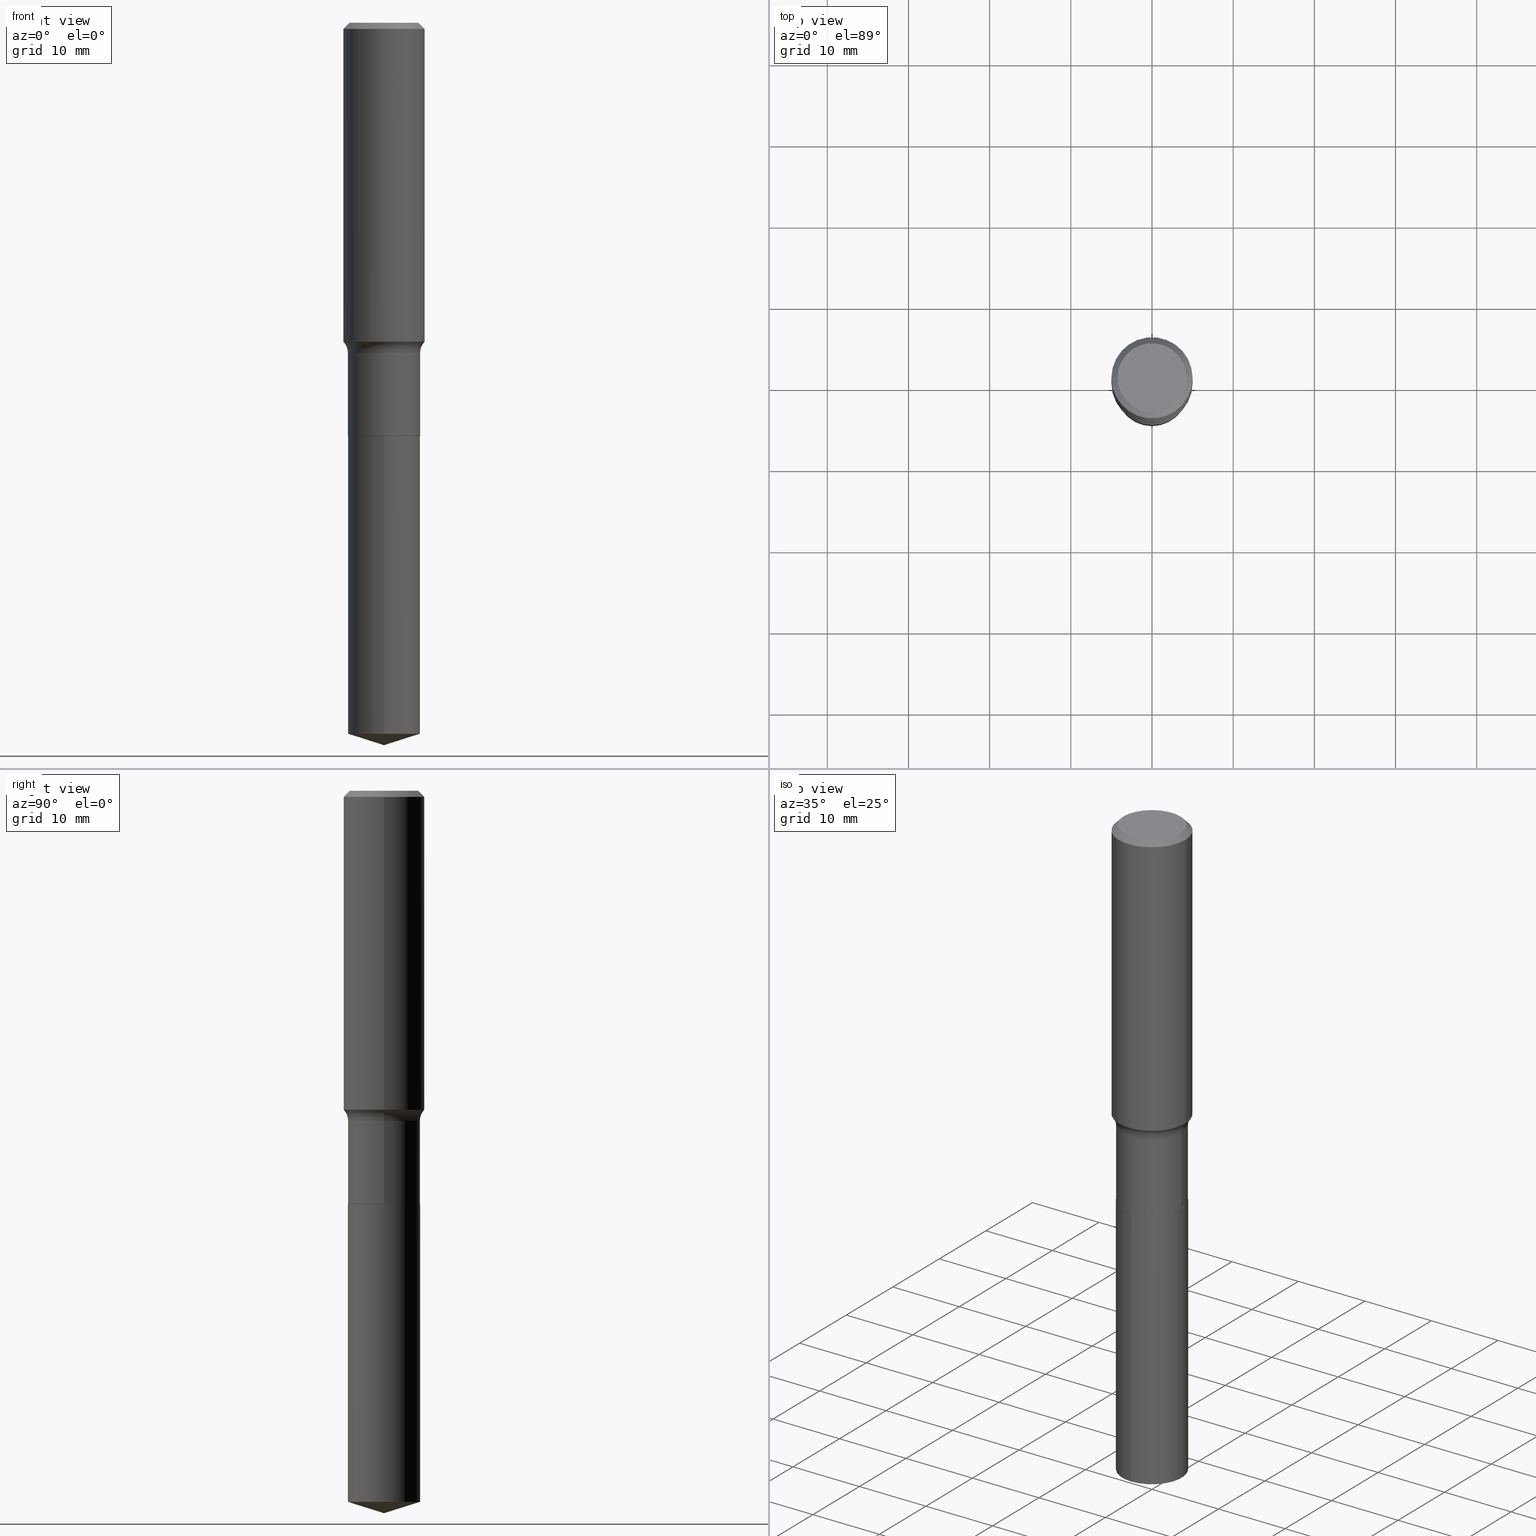
[diagram: canonical four-view strip — front | top / right | iso, engineering-drawing reading convention]
A machine part, canonical four-view strip (front | top / right | iso — engineering-drawing reading convention). The complete STEP part file that produces these views, byte-faithful:
ISO-10303-21;
HEADER;
FILE_DESCRIPTION (( 'STEP AP203' ),
    '1' );
FILE_NAME ('63772.STEP',
    '2024-04-19T15:09:20',
    ( '' ),
    ( '' ),
    'SwSTEP 2.0',
    'SolidWorks 2023',
    '' );
FILE_SCHEMA (( 'CONFIG_CONTROL_DESIGN' ));
ENDSEC;

DATA;
#1 = LINE ( 'NONE', #259, #117 ) ;
#2 =( GEOMETRIC_REPRESENTATION_CONTEXT ( 3 ) GLOBAL_UNCERTAINTY_ASSIGNED_CONTEXT ( ( #177 ) ) GLOBAL_UNIT_ASSIGNED_CONTEXT ( ( #146, #295, #415 ) ) REPRESENTATION_CONTEXT ( 'NONE', 'WORKASPACE' ) );
#3 = ADVANCED_FACE ( 'NONE', ( #428 ), #235, .T. ) ;
#4 = ADVANCED_FACE ( 'NONE', ( #268 ), #182, .T. ) ;
#5 = ORIENTED_EDGE ( 'NONE', *, *, #328, .F. ) ;
#6 = CARTESIAN_POINT ( 'NONE',  ( 8.433480303777848006E-29, -1.204108734173697850E-14, -3.448659652188401648 ) ) ;
#7 = EDGE_LOOP ( 'NONE', ( #83, #121 ) ) ;
#8 = EDGE_CURVE ( 'NONE', #321, #196, #37, .T. ) ;
#9 = AXIS2_PLACEMENT_3D ( 'NONE', #282, #87, #364 ) ;
#10 = ORIENTED_EDGE ( 'NONE', *, *, #192, .T. ) ;
#11 = DIRECTION ( 'NONE',  ( 1.000000000000000000, -6.982962677686265922E-15, 0.000000000000000000 ) ) ;
#12 = EDGE_LOOP ( 'NONE', ( #461, #115, #324, #119 ) ) ;
#13 = CARTESIAN_POINT ( 'NONE',  ( 7.220858017463216492E-31, -1.030947152326917595E-16, -0.02952750000000022024 ) ) ;
#14 = CARTESIAN_POINT ( 'NONE',  ( -1.223415061130584771E-15, -0.1752000000000069890, -2.003899999999998904 ) ) ;
#15 = ORIENTED_EDGE ( 'NONE', *, *, #357, .F. ) ;
#16 = EDGE_LOOP ( 'NONE', ( #48, #264 ) ) ;
#17 = LINE ( 'NONE', #402, #432 ) ;
#18 = DIRECTION ( 'NONE',  ( 6.982962677686265922E-15, 1.000000000000000000, -3.491589676655351307E-15 ) ) ;
#19 = EDGE_CURVE ( 'NONE', #114, #464, #381, .T. ) ;
#20 = ORIENTED_EDGE ( 'NONE', *, *, #176, .T. ) ;
#21 = DIRECTION ( 'NONE',  ( -2.445468806185136597E-29, 3.491481338843145583E-15, 1.000000000000000000 ) ) ;
#22 = CYLINDRICAL_SURFACE ( 'NONE', #481, 0.1751999999999999391 ) ;
#23 = DATE_AND_TIME ( #341, #190 ) ;
#24 = CARTESIAN_POINT ( 'NONE',  ( 7.088636537325996106E-29, -3.863007506136273756E-15, -2.003899999999999348 ) ) ;
#25 = PERSON_AND_ORGANIZATION ( #110, #46 ) ;
#26 = LINE ( 'NONE', #409, #34 ) ;
#27 = TOROIDAL_SURFACE ( 'NONE', #304, 0.2531999999999999251, 0.07799999999999995826 ) ;
#28 = CIRCLE ( 'NONE', #66, 0.1751999999999999391 ) ;
#29 = COORDINATED_UNIVERSAL_TIME_OFFSET ( 5, 0, .BEHIND. ) ;
#30 = DIRECTION ( 'NONE',  ( -2.445468806185136597E-29, 3.491481338843145583E-15, 1.000000000000000000 ) ) ;
#31 = FACE_OUTER_BOUND ( 'NONE', #434, .T. ) ;
#32 = APPROVAL_DATE_TIME ( #255, #329 ) ;
#33 = DIRECTION ( 'NONE',  ( -2.445468806185136597E-29, 3.491481338843145583E-15, 1.000000000000000000 ) ) ;
#34 = VECTOR ( 'NONE', #284, 39.37007874015748854 ) ;
#35 = CARTESIAN_POINT ( 'NONE',  ( 3.914951011821784364E-29, -5.589512475353991008E-15, -1.600899999999999768 ) ) ;
#36 = DIRECTION ( 'NONE',  ( 1.000000000000000000, -6.982962677686267499E-15, 4.876294436782262290E-29 ) ) ;
#37 = LINE ( 'NONE', #385, #266 ) ;
#38 = ADVANCED_FACE ( 'NONE', ( #194 ), #388, .T. ) ;
#39 = AXIS2_PLACEMENT_3D ( 'NONE', #349, #43, #265 ) ;
#40 = DIRECTION ( 'NONE',  ( -2.445393154295215171E-29, 3.491589676655351307E-15, 1.000000000000000000 ) ) ;
#41 = ORIENTED_EDGE ( 'NONE', *, *, #489, .F. ) ;
#42 = ORIENTED_EDGE ( 'NONE', *, *, #426, .T. ) ;
#43 = DIRECTION ( 'NONE',  ( 2.445468806185136597E-29, -3.491481338843145583E-15, -1.000000000000000000 ) ) ;
#44 = EDGE_LOOP ( 'NONE', ( #201, #42, #236, #427 ) ) ;
#45 = VECTOR ( 'NONE', #439, 39.37007874015748854 ) ;
#46 = ORGANIZATION ( 'UNSPECIFIED', 'UNSPECIFIED', '' ) ;
#47 = FACE_OUTER_BOUND ( 'NONE', #90, .T. ) ;
#48 = ORIENTED_EDGE ( 'NONE', *, *, #187, .T. ) ;
#49 = DIRECTION ( 'NONE',  ( 1.000000000000000000, -6.982962677686265922E-15, 0.000000000000000000 ) ) ;
#50 = ORIENTED_EDGE ( 'NONE', *, *, #8, .T. ) ;
#51 = VERTEX_POINT ( 'NONE', #237 ) ;
#52 = DIRECTION ( 'NONE',  ( 1.000000000000000000, -6.982962677686266711E-15, 0.000000000000000000 ) ) ;
#53 = CARTESIAN_POINT ( 'NONE',  ( 4.900474940714394579E-29, -6.996579454907778104E-15, -2.003899999999999793 ) ) ;
#54 = EDGE_CURVE ( 'NONE', #319, #469, #382, .T. ) ;
#55 = FACE_OUTER_BOUND ( 'NONE', #44, .T. ) ;
#56 = DIRECTION ( 'NONE',  ( 0.7071067811865454633, -7.319954787623246579E-15, -0.7071067811865493491 ) ) ;
#57 = CIRCLE ( 'NONE', #86, 0.1968500000000000527 ) ;
#58 = PERSON_AND_ORGANIZATION ( #110, #46 ) ;
#59 = FACE_OUTER_BOUND ( 'NONE', #440, .T. ) ;
#60 = ADVANCED_FACE ( 'NONE', ( #47 ), #451, .T. ) ;
#61 = COORDINATED_UNIVERSAL_TIME_OFFSET ( 5, 0, .BEHIND. ) ;
#62 = DIRECTION ( 'NONE',  ( -6.982962677686266711E-15, -1.000000000000000000, 3.491481338843145583E-15 ) ) ;
#63 = DATE_AND_TIME ( #135, #184 ) ;
#64 = CARTESIAN_POINT ( 'NONE',  ( 0.1673224999999999851, -1.300749711163072594E-15, 4.096137381456741925E-18 ) ) ;
#65 = CIRCLE ( 'NONE', #316, 0.07799999999999995826 ) ;
#66 = AXIS2_PLACEMENT_3D ( 'NONE', #35, #347, #145 ) ;
#67 = CALENDAR_DATE ( 2024, 19, 4 ) ;
#68 = CARTESIAN_POINT ( 'NONE',  ( 4.900474940714394018E-29, -6.996579454907777315E-15, -2.003899999999999348 ) ) ;
#69 = COORDINATED_UNIVERSAL_TIME_OFFSET ( 5, 0, .BEHIND. ) ;
#70 = DIRECTION ( 'NONE',  ( -2.445393154295215171E-29, 3.491589676655351307E-15, 1.000000000000000000 ) ) ;
#71 = DIRECTION ( 'NONE',  ( -2.445468806185136597E-29, 3.491481338843145583E-15, 1.000000000000000000 ) ) ;
#72 = CIRCLE ( 'NONE', #361, 0.1751999999999999946 ) ;
#73 = CARTESIAN_POINT ( 'NONE',  ( -5.008488096090108951E-47, 7.150793614331948590E-33, 2.048068690724054183E-18 ) ) ;
#74 = CC_DESIGN_SECURITY_CLASSIFICATION ( #375, ( #318 ) ) ;
#75 = ADVANCED_FACE ( 'NONE', ( #424 ), #156, .T. ) ;
#76 = APPROVAL ( #172, 'UNSPECIFIED' ) ;
#77 = ORIENTED_EDGE ( 'NONE', *, *, #454, .T. ) ;
#78 = VECTOR ( 'NONE', #94, 39.37007874015748143 ) ;
#79 = ORIENTED_EDGE ( 'NONE', *, *, #397, .F. ) ;
#80 = APPROVAL_PERSON_ORGANIZATION ( #58, #329, #144 ) ;
#81 = ORIENTED_EDGE ( 'NONE', *, *, #227, .F. ) ;
#82 = CARTESIAN_POINT ( 'NONE',  ( 4.900474940714394018E-29, -6.996579454907777315E-15, -2.003899999999999348 ) ) ;
#83 = ORIENTED_EDGE ( 'NONE', *, *, #422, .F. ) ;
#84 = DIRECTION ( 'NONE',  ( -6.982962677686265133E-15, -1.000000000000000000, 3.118547937972903315E-15 ) ) ;
#85 = VERTEX_POINT ( 'NONE', #127 ) ;
#86 = AXIS2_PLACEMENT_3D ( 'NONE', #445, #360, #480 ) ;
#87 = DIRECTION ( 'NONE',  ( -2.445468806185136597E-29, 3.491481338843145583E-15, 1.000000000000000000 ) ) ;
#88 = AXIS2_PLACEMENT_3D ( 'NONE', #379, #299, #301 ) ;
#89 = ORIENTED_EDGE ( 'NONE', *, *, #314, .F. ) ;
#90 = EDGE_LOOP ( 'NONE', ( #285, #41, #317, #203 ) ) ;
#91 = DIRECTION ( 'NONE',  ( 1.000000000000000000, -6.982962677686266711E-15, 4.876176775795935793E-29 ) ) ;
#92 = EDGE_CURVE ( 'NONE', #319, #275, #209, .T. ) ;
#93 = CARTESIAN_POINT ( 'NONE',  ( 0.1968500000000000527, -1.477690918335233688E-15, -0.02952750000000022024 ) ) ;
#94 = DIRECTION ( 'NONE',  ( -2.445393154295215451E-29, 3.491589676655351307E-15, 1.000000000000000000 ) ) ;
#95 = CARTESIAN_POINT ( 'NONE',  ( 0.1751999999999999946, -8.218248775368990478E-15, -2.003399999999999626 ) ) ;
#96 = ORIENTED_EDGE ( 'NONE', *, *, #192, .F. ) ;
#97 = DIRECTION ( 'NONE',  ( -6.659769872151621833E-15, -0.9537169507482252673, 0.3007057995042780596 ) ) ;
#98 = DIRECTION ( 'NONE',  ( -2.445393154295215171E-29, 3.491589676655351307E-15, 1.000000000000000000 ) ) ;
#99 = LOCAL_TIME ( 11, 9, 20.00000000000000000, #338 ) ;
#100 = DIRECTION ( 'NONE',  ( 0.000000000000000000, 0.000000000000000000, 1.000000000000000000 ) ) ;
#101 = CARTESIAN_POINT ( 'NONE',  ( 4.900474940714394579E-29, -6.996579454907778104E-15, -2.003899999999999793 ) ) ;
#102 = CALENDAR_DATE ( 2024, 19, 4 ) ;
#103 = CARTESIAN_POINT ( 'NONE',  ( -0.1673224999999999851, 1.219954130253505460E-15, 4.096137381439757534E-18 ) ) ;
#104 = CIRCLE ( 'NONE', #386, 0.1751999999999999391 ) ;
#105 = DATE_AND_TIME ( #300, #137 ) ;
#106 = CYLINDRICAL_SURFACE ( 'NONE', #457, 0.1968500000000001082 ) ;
#107 = EDGE_CURVE ( 'NONE', #238, #363, #418, .T. ) ;
#108 = CARTESIAN_POINT ( 'NONE',  ( 0.000000000000000000, 0.000000000000000000, 0.000000000000000000 ) ) ;
#109 = DIRECTION ( 'NONE',  ( -2.445468806185136597E-29, 3.491481338843145583E-15, 1.000000000000000000 ) ) ;
#110 = PERSON ( 'UNSPECIFIED', 'UNSPECIFIED', 'UNSPECIFIED', ('UNSPECIFIED'), ('UNSPECIFIED'), ('UNSPECIFIED') ) ;
#111 = EDGE_CURVE ( 'NONE', #464, #114, #134, .T. ) ;
#112 = VECTOR ( 'NONE', #450, 39.37007874015748143 ) ;
#113 = CARTESIAN_POINT ( 'NONE',  ( 3.914951011821784364E-29, -5.589512475353991008E-15, -1.600899999999999768 ) ) ;
#114 = VERTEX_POINT ( 'NONE', #400 ) ;
#115 = ORIENTED_EDGE ( 'NONE', *, *, #140, .T. ) ;
#116 = AXIS2_PLACEMENT_3D ( 'NONE', #421, #354, #84 ) ;
#117 = VECTOR ( 'NONE', #258, 39.37007874015748143 ) ;
#118 = VERTEX_POINT ( 'NONE', #241 ) ;
#119 = ORIENTED_EDGE ( 'NONE', *, *, #404, .F. ) ;
#120 = ORIENTED_EDGE ( 'NONE', *, *, #246, .T. ) ;
#121 = ORIENTED_EDGE ( 'NONE', *, *, #426, .F. ) ;
#122 = EDGE_CURVE ( 'NONE', #470, #353, #371, .T. ) ;
#123 = EDGE_LOOP ( 'NONE', ( #243, #270, #387, #240 ) ) ;
#124 = AXIS2_PLACEMENT_3D ( 'NONE', #462, #475, #91 ) ;
#125 = DIRECTION ( 'NONE',  ( 7.105427357601001859E-15, 1.000000000000000000, -3.491481338843145583E-15 ) ) ;
#126 = FACE_OUTER_BOUND ( 'NONE', #16, .T. ) ;
#127 = CARTESIAN_POINT ( 'NONE',  ( 8.568413073335003526E-29, -1.223418106803268517E-14, -3.503899999999999793 ) ) ;
#128 = DIRECTION ( 'NONE',  ( -2.445468806185136597E-29, 3.491481338843145583E-15, 1.000000000000000000 ) ) ;
#129 = ORIENTED_EDGE ( 'NONE', *, *, #122, .F. ) ;
#130 = CARTESIAN_POINT ( 'NONE',  ( 4.899252206311301777E-29, -6.994833714238356601E-15, -2.003399999999999626 ) ) ;
#131 = ADVANCED_FACE ( 'NONE', ( #330 ), #239, .T. ) ;
#132 = APPLICATION_PROTOCOL_DEFINITION ( 'international standard', 'config_control_design', 1994, #294 ) ;
#133 = CARTESIAN_POINT ( 'NONE',  ( 8.568413073335005768E-29, -1.223418106803268675E-14, -3.503899999999999793 ) ) ;
#134 = CIRCLE ( 'NONE', #171, 0.1968500000000001915 ) ;
#135 = CALENDAR_DATE ( 2024, 19, 4 ) ;
#136 = CARTESIAN_POINT ( 'NONE',  ( -8.770675636308748454E-28, 1.252301965283513700E-13, 35.86617874015747987 ) ) ;
#137 = LOCAL_TIME ( 11, 9, 20.00000000000000000, #61 ) ;
#138 = APPLICATION_PROTOCOL_DEFINITION ( 'international standard', 'config_control_design', 1994, #181 ) ;
#139 = LENGTH_MEASURE_WITH_UNIT ( LENGTH_MEASURE( 0.02539999999999999897 ), #348 );
#140 = EDGE_CURVE ( 'NONE', #350, #118, #17, .T. ) ;
#141 = COORDINATED_UNIVERSAL_TIME_OFFSET ( 5, 0, .BEHIND. ) ;
#142 = CARTESIAN_POINT ( 'NONE',  ( -0.1968500000000000527, -1.353448661034646867E-15, -0.02952750000000022024 ) ) ;
#143 = AXIS2_PLACEMENT_3D ( 'NONE', #24, #368, #331 ) ;
#144 = APPROVAL_ROLE ( '' ) ;
#145 = DIRECTION ( 'NONE',  ( 1.000000000000000000, -6.982962677686265133E-15, 0.000000000000000000 ) ) ;
#146 =( CONVERSION_BASED_UNIT ( 'INCH', #139 ) LENGTH_UNIT ( ) NAMED_UNIT ( #310 ) );
#147 = DIRECTION ( 'NONE',  ( 2.445468806185136597E-29, -3.491481338843145583E-15, -1.000000000000000000 ) ) ;
#148 = ADVANCED_FACE ( 'NONE', ( #55 ), #150, .T. ) ;
#149 = DIRECTION ( 'NONE',  ( -2.445468806185136597E-29, 3.491481338843145583E-15, 1.000000000000000000 ) ) ;
#150 = CONICAL_SURFACE ( 'NONE', #473, 0.1746999999999999942, 0.7853981633978239785 ) ;
#151 = CIRCLE ( 'NONE', #305, 0.1673224999999999851 ) ;
#152 = DIRECTION ( 'NONE',  ( -2.445468806185136597E-29, 3.491481338843145583E-15, 1.000000000000000000 ) ) ;
#153 = EDGE_CURVE ( 'NONE', #464, #51, #65, .T. ) ;
#154 = ORIENTED_EDGE ( 'NONE', *, *, #306, .F. ) ;
#155 = EDGE_CURVE ( 'NONE', #464, #470, #162, .T. ) ;
#156 = CYLINDRICAL_SURFACE ( 'NONE', #124, 0.1751999999999999391 ) ;
#157 = ORIENTED_EDGE ( 'NONE', *, *, #19, .F. ) ;
#158 = CLOSED_SHELL ( 'NONE', ( #4, #460, #484, #466, #221, #75, #291, #447, #60, #366, #263, #148 ) ) ;
#159 = AXIS2_PLACEMENT_3D ( 'NONE', #73, #374, #342 ) ;
#160 = ORIENTED_EDGE ( 'NONE', *, *, #328, .T. ) ;
#161 = EDGE_LOOP ( 'NONE', ( #395, #208, #308, #193 ) ) ;
#162 = LINE ( 'NONE', #280, #344 ) ;
#163 = CARTESIAN_POINT ( 'NONE',  ( -0.1751999999999999391, 1.244870873051695093E-15, -8.617974278126592972E-30 ) ) ;
#164 = APPROVAL_PERSON_ORGANIZATION ( #367, #340, #292 ) ;
#165 = CIRCLE ( 'NONE', #425, 0.1751999999999999946 ) ;
#166 = DIRECTION ( 'NONE',  ( -0.7071067811868130271, 7.493145998871311837E-15, 0.7071067811862817853 ) ) ;
#167 = LINE ( 'NONE', #133, #352 ) ;
#168 = CARTESIAN_POINT ( 'NONE',  ( 4.900474940714394018E-29, -6.996579454907777315E-15, -2.003899999999999348 ) ) ;
#169 = DIRECTION ( 'NONE',  ( 2.445393154295214891E-29, -3.491589676655351307E-15, -1.000000000000000000 ) ) ;
#170 = CARTESIAN_POINT ( 'NONE',  ( 3.914951011821784364E-29, -5.589512475353991008E-15, -1.600899999999999768 ) ) ;
#171 = AXIS2_PLACEMENT_3D ( 'NONE', #325, #247, #205 ) ;
#172 = APPROVAL_STATUS ( 'not_yet_approved' ) ;
#173 = DIRECTION ( 'NONE',  ( -6.982962677686265133E-15, -1.000000000000000000, 3.118547937972903315E-15 ) ) ;
#174 = CIRCLE ( 'NONE', #189, 0.1746999999999999942 ) ;
#175 = DIRECTION ( 'NONE',  ( -1.000000000000000000, 6.982962677686266711E-15, 0.000000000000000000 ) ) ;
#176 = EDGE_CURVE ( 'NONE', #114, #196, #288, .T. ) ;
#177 = UNCERTAINTY_MEASURE_WITH_UNIT (LENGTH_MEASURE( 1.000000000000000082E-05 ), #146, 'distance_accuracy_value', 'NONE');
#178 = FACE_OUTER_BOUND ( 'NONE', #267, .T. ) ;
#179 = PERSON_AND_ORGANIZATION_ROLE ( 'creator' ) ;
#180 = LINE ( 'NONE', #416, #443 ) ;
#181 = APPLICATION_CONTEXT ( 'configuration controlled 3d designs of mechanical parts and assemblies' ) ;
#182 = CONICAL_SURFACE ( 'NONE', #315, 0.1746999999999999942, 0.7853981633978239785 ) ;
#183 = AXIS2_PLACEMENT_3D ( 'NONE', #396, #438, #435 ) ;
#184 = LOCAL_TIME ( 11, 9, 20.00000000000000000, #69 ) ;
#185 = FACE_OUTER_BOUND ( 'NONE', #231, .T. ) ;
#186 = LOCAL_TIME ( 11, 9, 20.00000000000000000, #141 ) ;
#187 = EDGE_CURVE ( 'NONE', #275, #430, #72, .T. ) ;
#188 = CIRCLE ( 'NONE', #394, 0.1751999999999999946 ) ;
#189 = AXIS2_PLACEMENT_3D ( 'NONE', #68, #149, #486 ) ;
#190 = LOCAL_TIME ( 11, 9, 20.00000000000000000, #29 ) ;
#191 = DIRECTION ( 'NONE',  ( -2.445468806185136597E-29, 3.491481338843145583E-15, 1.000000000000000000 ) ) ;
#192 = EDGE_CURVE ( 'NONE', #85, #319, #167, .T. ) ;
#193 = ORIENTED_EDGE ( 'NONE', *, *, #92, .F. ) ;
#194 = FACE_OUTER_BOUND ( 'NONE', #233, .T. ) ;
#195 = ORIENTED_EDGE ( 'NONE', *, *, #378, .F. ) ;
#196 = VERTEX_POINT ( 'NONE', #401 ) ;
#197 = AXIS2_PLACEMENT_3D ( 'NONE', #13, #471, #52 ) ;
#198 = AXIS2_PLACEMENT_3D ( 'NONE', #218, #30, #222 ) ;
#199 = ORIENTED_EDGE ( 'NONE', *, *, #107, .T. ) ;
#200 = ADVANCED_BREP_SHAPE_REPRESENTATION ( '63772', ( #272, #441, #410 ), #2 ) ;
#201 = ORIENTED_EDGE ( 'NONE', *, *, #140, .F. ) ;
#202 = CARTESIAN_POINT ( 'NONE',  ( -0.2531999999999999251, -3.790418268409418263E-15, -1.600899999999999768 ) ) ;
#203 = ORIENTED_EDGE ( 'NONE', *, *, #122, .T. ) ;
#204 = ORIENTED_EDGE ( 'NONE', *, *, #54, .F. ) ;
#205 = DIRECTION ( 'NONE',  ( 1.000000000000000000, -6.982962677686266711E-15, 0.000000000000000000 ) ) ;
#206 = PLANE ( 'NONE',  #456 ) ;
#207 = CLOSED_SHELL ( 'NONE', ( #3, #131, #229, #38, #249 ) ) ;
#208 = ORIENTED_EDGE ( 'NONE', *, *, #378, .T. ) ;
#209 = LINE ( 'NONE', #359, #78 ) ;
#210 = CARTESIAN_POINT ( 'NONE',  ( 0.2531999999999999251, -7.357598625344153720E-15, -1.600899999999999768 ) ) ;
#211 = APPROVAL_STATUS ( 'not_yet_approved' ) ;
#212 = FACE_OUTER_BOUND ( 'NONE', #7, .T. ) ;
#213 = LINE ( 'NONE', #163, #488 ) ;
#214 = PERSON_AND_ORGANIZATION ( #110, #46 ) ;
#215 = LINE ( 'NONE', #476, #45 ) ;
#216 = EDGE_CURVE ( 'NONE', #118, #321, #463, .T. ) ;
#217 = DATE_AND_TIME ( #67, #99 ) ;
#218 = CARTESIAN_POINT ( 'NONE',  ( 4.900474940714394018E-29, -6.996579454907777315E-15, -2.003899999999999348 ) ) ;
#219 = PERSON_AND_ORGANIZATION_ROLE ( 'design_owner' ) ;
#220 = CARTESIAN_POINT ( 'NONE',  ( -1.001697619218021790E-46, 1.430158722866389718E-32, 4.096137381448108366E-18 ) ) ;
#221 = ADVANCED_FACE ( 'NONE', ( #442 ), #22, .T. ) ;
#222 = DIRECTION ( 'NONE',  ( 1.000000000000000000, -6.982962677686265922E-15, 0.000000000000000000 ) ) ;
#223 = AXIS2_PLACEMENT_3D ( 'NONE', #313, #152, #390 ) ;
#224 = AXIS2_PLACEMENT_3D ( 'NONE', #6, #40, #458 ) ;
#225 = DIRECTION ( 'NONE',  ( -6.982962677686265133E-15, -1.000000000000000000, 3.118547937972903315E-15 ) ) ;
#226 = CC_DESIGN_APPROVAL ( #76, ( #375 ) ) ;
#227 = EDGE_CURVE ( 'NONE', #430, #275, #188, .T. ) ;
#228 = PRODUCT_DEFINITION_SHAPE ( 'NONE', 'NONE',  #230 ) ;
#229 = ADVANCED_FACE ( 'NONE', ( #59 ), #336, .T. ) ;
#230 = PRODUCT_DEFINITION ( 'UNKNOWN', '', #318, #312 ) ;
#231 = EDGE_LOOP ( 'NONE', ( #323, #332, #160, #154 ) ) ;
#232 = ORIENTED_EDGE ( 'NONE', *, *, #314, .T. ) ;
#233 = EDGE_LOOP ( 'NONE', ( #195, #468, #311, #81 ) ) ;
#234 = DIRECTION ( 'NONE',  ( -2.445468806185136877E-29, 3.491481338843145188E-15, 1.000000000000000000 ) ) ;
#235 = CYLINDRICAL_SURFACE ( 'NONE', #116, 0.1751999999999999946 ) ;
#236 = ORIENTED_EDGE ( 'NONE', *, *, #404, .T. ) ;
#237 = CARTESIAN_POINT ( 'NONE',  ( -0.1751999999999999391, -5.047302221744479303E-15, -1.600899999999999768 ) ) ;
#238 = VERTEX_POINT ( 'NONE', #64 ) ;
#239 = CONICAL_SURFACE ( 'NONE', #183, 124.8659371009131434, 1.265363707695887241 ) ;
#240 = ORIENTED_EDGE ( 'NONE', *, *, #176, .F. ) ;
#241 = CARTESIAN_POINT ( 'NONE',  ( -0.1751999999999999946, -5.047302221744479303E-15, -2.003399999999999626 ) ) ;
#242 = ORIENTED_EDGE ( 'NONE', *, *, #8, .F. ) ;
#243 = ORIENTED_EDGE ( 'NONE', *, *, #111, .F. ) ;
#244 = DIRECTION ( 'NONE',  ( -2.445468806185136877E-29, 3.491481338843145188E-15, 1.000000000000000000 ) ) ;
#245 = DIRECTION ( 'NONE',  ( -2.445468806185136597E-29, 3.491481338843145583E-15, 1.000000000000000000 ) ) ;
#246 = EDGE_CURVE ( 'NONE', #85, #469, #215, .T. ) ;
#247 = DIRECTION ( 'NONE',  ( -2.445468806185136597E-29, 3.491481338843145583E-15, 1.000000000000000000 ) ) ;
#248 = CARTESIAN_POINT ( 'NONE',  ( 0.1968500000000000527, -1.453583746094018101E-15, -0.02952750000000022024 ) ) ;
#249 = ADVANCED_FACE ( 'NONE', ( #126 ), #206, .F. ) ;
#250 = CIRCLE ( 'NONE', #405, 0.1751999999999999946 ) ;
#251 = DATE_TIME_ROLE ( 'creation_date' ) ;
#252 = DIRECTION ( 'NONE',  ( 1.000000000000000000, -6.982962677686266711E-15, 4.876176775795935793E-29 ) ) ;
#253 = DIRECTION ( 'NONE',  ( 1.000000000000000000, -6.982962677686269077E-15, 0.000000000000000000 ) ) ;
#254 = AXIS2_PLACEMENT_3D ( 'NONE', #136, #290, #446 ) ;
#255 = DATE_AND_TIME ( #102, #186 ) ;
#256 = CARTESIAN_POINT ( 'NONE',  ( 8.433480303777848006E-29, -1.204108734173697850E-14, -3.448659652188401648 ) ) ;
#257 = APPROVAL_DATE_TIME ( #23, #340 ) ;
#258 = DIRECTION ( 'NONE',  ( -2.445393154295215451E-29, 3.491589676655351307E-15, 1.000000000000000000 ) ) ;
#259 = CARTESIAN_POINT ( 'NONE',  ( 1.244870873051744200E-15, 0.1751999999999929725, -2.003900000000000237 ) ) ;
#260 = AXIS2_PLACEMENT_3D ( 'NONE', #130, #333, #286 ) ;
#261 = AXIS2_PLACEMENT_3D ( 'NONE', #303, #71, #262 ) ;
#262 = DIRECTION ( 'NONE',  ( 1.000000000000000000, -6.982962677686266711E-15, 4.876176775795935793E-29 ) ) ;
#263 = ADVANCED_FACE ( 'NONE', ( #212 ), #478, .F. ) ;
#264 = ORIENTED_EDGE ( 'NONE', *, *, #227, .T. ) ;
#265 = DIRECTION ( 'NONE',  ( -1.000000000000000000, 6.982962677686266711E-15, 0.000000000000000000 ) ) ;
#266 = VECTOR ( 'NONE', #234, 39.37007874015748143 ) ;
#267 = EDGE_LOOP ( 'NONE', ( #279, #276, #423, #129 ) ) ;
#268 = FACE_OUTER_BOUND ( 'NONE', #12, .T. ) ;
#269 = EDGE_LOOP ( 'NONE', ( #89, #322, #50, #15 ) ) ;
#270 = ORIENTED_EDGE ( 'NONE', *, *, #153, .T. ) ;
#271 = DIRECTION ( 'NONE',  ( -2.445393154295215171E-29, 3.491589676655351307E-15, 1.000000000000000000 ) ) ;
#272 = MANIFOLD_SOLID_BREP ( 'Body-Move/Copy2[1]', #207 ) ;
#273 = ORIENTED_EDGE ( 'NONE', *, *, #246, .F. ) ;
#274 = CC_DESIGN_PERSON_AND_ORGANIZATION_ASSIGNMENT ( #411, #219, ( #307 ) ) ;
#275 = VERTEX_POINT ( 'NONE', #14 ) ;
#276 = ORIENTED_EDGE ( 'NONE', *, *, #111, .T. ) ;
#277 = VECTOR ( 'NONE', #56, 39.37007874015748854 ) ;
#278 = CONICAL_SURFACE ( 'NONE', #433, 0.1968500000000000527, 0.7853981633974456145 ) ;
#279 = ORIENTED_EDGE ( 'NONE', *, *, #155, .F. ) ;
#280 = CARTESIAN_POINT ( 'NONE',  ( -0.1968500000000001082, 1.398703375343757985E-15, -9.682923725166787881E-30 ) ) ;
#281 = CARTESIAN_POINT ( 'NONE',  ( -1.223415061130549272E-15, -0.1752000000000120683, -3.448659652188400759 ) ) ;
#282 = CARTESIAN_POINT ( 'NONE',  ( -1.001697619218021790E-46, 1.430158722866389718E-32, 4.096137381448108366E-18 ) ) ;
#283 = EDGE_CURVE ( 'NONE', #321, #118, #165, .T. ) ;
#284 = DIRECTION ( 'NONE',  ( -0.7071067811865454633, 2.468850131082235761E-15, -0.7071067811865493491 ) ) ;
#285 = ORIENTED_EDGE ( 'NONE', *, *, #343, .F. ) ;
#286 = DIRECTION ( 'NONE',  ( 1.000000000000000000, -6.982962677686269077E-15, 0.000000000000000000 ) ) ;
#287 = CC_DESIGN_DATE_AND_TIME_ASSIGNMENT ( #105, #369, ( #375 ) ) ;
#288 = CIRCLE ( 'NONE', #297, 0.07799999999999995826 ) ;
#289 = PERSON_AND_ORGANIZATION ( #110, #46 ) ;
#290 = DIRECTION ( 'NONE',  ( -2.445393154295215171E-29, 3.491589676655351307E-15, 1.000000000000000000 ) ) ;
#291 = ADVANCED_FACE ( 'NONE', ( #408 ), #27, .F. ) ;
#292 = APPROVAL_ROLE ( '' ) ;
#293 = CARTESIAN_POINT ( 'NONE',  ( 4.899252206311301777E-29, -6.994833714238356601E-15, -2.003399999999999626 ) ) ;
#294 = APPLICATION_CONTEXT ( 'configuration controlled 3d designs of mechanical parts and assemblies' ) ;
#295 =( NAMED_UNIT ( * ) PLANE_ANGLE_UNIT ( ) SI_UNIT ( $, .RADIAN. ) );
#296 = CYLINDRICAL_SURFACE ( 'NONE', #261, 0.1968500000000001082 ) ;
#297 = AXIS2_PLACEMENT_3D ( 'NONE', #210, #62, #472 ) ;
#298 = PERSON_AND_ORGANIZATION_ROLE ( 'design_supplier' ) ;
#299 = DIRECTION ( 'NONE',  ( -2.445468806185136597E-29, 3.491481338843145583E-15, 1.000000000000000000 ) ) ;
#300 = CALENDAR_DATE ( 2024, 19, 4 ) ;
#301 = DIRECTION ( 'NONE',  ( 1.000000000000000000, -6.982962677686266711E-15, 4.883557194083112901E-29 ) ) ;
#302 = DIRECTION ( 'NONE',  ( -2.445468806185136597E-29, 3.491481338843145583E-15, 1.000000000000000000 ) ) ;
#303 = CARTESIAN_POINT ( 'NONE',  ( 0.000000000000000000, 0.000000000000000000, 0.000000000000000000 ) ) ;
#304 = AXIS2_PLACEMENT_3D ( 'NONE', #170, #128, #335 ) ;
#305 = AXIS2_PLACEMENT_3D ( 'NONE', #220, #109, #36 ) ;
#306 = EDGE_CURVE ( 'NONE', #363, #470, #26, .T. ) ;
#307 = PRODUCT ( '63772', '63772', '', ( #449 ) ) ;
#308 = ORIENTED_EDGE ( 'NONE', *, *, #187, .F. ) ;
#309 = CC_DESIGN_PERSON_AND_ORGANIZATION_ASSIGNMENT ( #444, #298, ( #318 ) ) ;
#310 = DIMENSIONAL_EXPONENTS ( 1.000000000000000000, 0.000000000000000000, 0.000000000000000000, 0.000000000000000000, 0.000000000000000000, 0.000000000000000000, 0.000000000000000000 ) ;
#311 = ORIENTED_EDGE ( 'NONE', *, *, #92, .T. ) ;
#312 = DESIGN_CONTEXT ( 'detailed design', #294, 'design' ) ;
#313 = CARTESIAN_POINT ( 'NONE',  ( 3.783061605558214403E-29, -5.401209357524118413E-15, -1.546967843543948229 ) ) ;
#314 = EDGE_CURVE ( 'NONE', #118, #51, #213, .T. ) ;
#315 = AXIS2_PLACEMENT_3D ( 'NONE', #82, #191, #11 ) ;
#316 = AXIS2_PLACEMENT_3D ( 'NONE', #202, #125, #356 ) ;
#317 = ORIENTED_EDGE ( 'NONE', *, *, #306, .T. ) ;
#318 = PRODUCT_DEFINITION_FORMATION_WITH_SPECIFIED_SOURCE ( 'ANY', '', #307, .NOT_KNOWN. ) ;
#319 = VERTEX_POINT ( 'NONE', #281 ) ;
#320 = APPROVAL_PERSON_ORGANIZATION ( #25, #76, #485 ) ;
#321 = VERTEX_POINT ( 'NONE', #95 ) ;
#322 = ORIENTED_EDGE ( 'NONE', *, *, #216, .T. ) ;
#323 = ORIENTED_EDGE ( 'NONE', *, *, #107, .F. ) ;
#324 = ORIENTED_EDGE ( 'NONE', *, *, #283, .F. ) ;
#325 = CARTESIAN_POINT ( 'NONE',  ( 3.783061605558214403E-29, -5.401209357524118413E-15, -1.546967843543948229 ) ) ;
#326 = DIRECTION ( 'NONE',  ( -2.445468806185136877E-29, 3.491481338843145188E-15, 1.000000000000000000 ) ) ;
#327 = AXIS2_PLACEMENT_3D ( 'NONE', #393, #271, #429 ) ;
#328 = EDGE_CURVE ( 'NONE', #353, #470, #57, .T. ) ;
#329 = APPROVAL ( #211, 'UNSPECIFIED' ) ;
#330 = FACE_OUTER_BOUND ( 'NONE', #459, .T. ) ;
#331 = DIRECTION ( 'NONE',  ( 1.000000000000000000, -6.982962677686265922E-15, 4.876176775795935793E-29 ) ) ;
#332 = ORIENTED_EDGE ( 'NONE', *, *, #343, .T. ) ;
#333 = DIRECTION ( 'NONE',  ( -2.445468806185136597E-29, 3.491481338843145583E-15, 1.000000000000000000 ) ) ;
#334 = DIRECTION ( 'NONE',  ( 1.000000000000000000, 0.000000000000000000, 0.000000000000000000 ) ) ;
#335 = DIRECTION ( 'NONE',  ( 1.000000000000000000, -6.982962677686266711E-15, 4.883557194083112901E-29 ) ) ;
#336 = CONICAL_SURFACE ( 'NONE', #254, 124.8659371009131434, 1.265363707695887241 ) ;
#337 = TOROIDAL_SURFACE ( 'NONE', #88, 0.2531999999999999251, 0.07799999999999995826 ) ;
#338 = COORDINATED_UNIVERSAL_TIME_OFFSET ( 5, 0, .BEHIND. ) ;
#339 = CARTESIAN_POINT ( 'NONE',  ( -0.1746999999999999942, -5.752612068360772906E-15, -2.003899999999999348 ) ) ;
#340 = APPROVAL ( #487, 'UNSPECIFIED' ) ;
#341 = CALENDAR_DATE ( 2024, 19, 4 ) ;
#342 = DIRECTION ( 'NONE',  ( -1.000000000000000000, 6.982962677686265922E-15, -4.876176775795935793E-29 ) ) ;
#343 = EDGE_CURVE ( 'NONE', #238, #353, #437, .T. ) ;
#344 = VECTOR ( 'NONE', #244, 39.37007874015748143 ) ;
#345 = SECURITY_CLASSIFICATION_LEVEL ( 'unclassified' ) ;
#346 = DIRECTION ( 'NONE',  ( 0.7071067811868130271, -2.468850131085038979E-15, 0.7071067811862817853 ) ) ;
#347 = DIRECTION ( 'NONE',  ( -2.445468806185136597E-29, 3.491481338843145583E-15, 1.000000000000000000 ) ) ;
#348 =( LENGTH_UNIT ( ) NAMED_UNIT ( * ) SI_UNIT ( $, .METRE. ) );
#349 = CARTESIAN_POINT ( 'NONE',  ( 7.220858017463216492E-31, -1.030947152326917595E-16, -0.02952750000000022024 ) ) ;
#350 = VERTEX_POINT ( 'NONE', #339 ) ;
#351 = ORIENTED_EDGE ( 'NONE', *, *, #153, .F. ) ;
#352 = VECTOR ( 'NONE', #97, 39.37007874015748143 ) ;
#353 = VERTEX_POINT ( 'NONE', #93 ) ;
#354 = DIRECTION ( 'NONE',  ( -2.445393154295215171E-29, 3.491589676655351307E-15, 1.000000000000000000 ) ) ;
#355 = ORIENTED_EDGE ( 'NONE', *, *, #19, .T. ) ;
#356 = DIRECTION ( 'NONE',  ( -1.000000000000000000, 7.105427357601001859E-15, 0.000000000000000000 ) ) ;
#357 = EDGE_CURVE ( 'NONE', #51, #196, #104, .T. ) ;
#358 = ORIENTED_EDGE ( 'NONE', *, *, #283, .T. ) ;
#359 = CARTESIAN_POINT ( 'NONE',  ( -1.223415061130584771E-15, -0.1752000000000069890, -2.003899999999998904 ) ) ;
#360 = DIRECTION ( 'NONE',  ( -2.445468806185136597E-29, 3.491481338843145583E-15, 1.000000000000000000 ) ) ;
#361 = AXIS2_PLACEMENT_3D ( 'NONE', #53, #483, #365 ) ;
#362 = CC_DESIGN_PERSON_AND_ORGANIZATION_ASSIGNMENT ( #214, #373, ( #318 ) ) ;
#363 = VERTEX_POINT ( 'NONE', #103 ) ;
#364 = DIRECTION ( 'NONE',  ( 1.000000000000000000, -6.982962677686267499E-15, 4.876294436782262290E-29 ) ) ;
#365 = DIRECTION ( 'NONE',  ( -6.982962677686265133E-15, -1.000000000000000000, 3.118547937972903315E-15 ) ) ;
#366 = ADVANCED_FACE ( 'NONE', ( #31 ), #491, .F. ) ;
#367 = PERSON_AND_ORGANIZATION ( #110, #46 ) ;
#368 = DIRECTION ( 'NONE',  ( -2.438088387897960049E-29, 3.491481338843145188E-15, 1.000000000000000000 ) ) ;
#369 = DATE_TIME_ROLE ( 'classification_date' ) ;
#370 = CARTESIAN_POINT ( 'NONE',  ( 0.000000000000000000, 0.000000000000000000, 0.000000000000000000 ) ) ;
#371 = CIRCLE ( 'NONE', #197, 0.1968500000000000527 ) ;
#372 = CIRCLE ( 'NONE', #198, 0.1746999999999999942 ) ;
#373 = PERSON_AND_ORGANIZATION_ROLE ( 'creator' ) ;
#374 = DIRECTION ( 'NONE',  ( 2.438088387897960049E-29, -3.491481338843145188E-15, -1.000000000000000000 ) ) ;
#375 = SECURITY_CLASSIFICATION ( '', '', #345 ) ;
#376 = SHAPE_DEFINITION_REPRESENTATION ( #228, #200 ) ;
#377 = DIRECTION ( 'NONE',  ( 1.000000000000000000, -6.982962677686265133E-15, 0.000000000000000000 ) ) ;
#378 = EDGE_CURVE ( 'NONE', #469, #430, #1, .T. ) ;
#379 = CARTESIAN_POINT ( 'NONE',  ( 3.914951011821784364E-29, -5.589512475353991008E-15, -1.600899999999999768 ) ) ;
#380 = CC_DESIGN_PERSON_AND_ORGANIZATION_ASSIGNMENT ( #490, #479, ( #375 ) ) ;
#381 = CIRCLE ( 'NONE', #223, 0.1968500000000001915 ) ;
#382 = CIRCLE ( 'NONE', #224, 0.1751999999999999946 ) ;
#383 = CARTESIAN_POINT ( 'NONE',  ( 1.244870873051779896E-15, 0.1751999999999929725, -2.003900000000000237 ) ) ;
#384 = FACE_OUTER_BOUND ( 'NONE', #123, .T. ) ;
#385 = CARTESIAN_POINT ( 'NONE',  ( 0.1751999999999999391, -1.223415061130633483E-15, 8.543061711194476516E-30 ) ) ;
#386 = AXIS2_PLACEMENT_3D ( 'NONE', #113, #33, #377 ) ;
#387 = ORIENTED_EDGE ( 'NONE', *, *, #357, .T. ) ;
#388 = CYLINDRICAL_SURFACE ( 'NONE', #327, 0.1751999999999999946 ) ;
#389 = ORIENTED_EDGE ( 'NONE', *, *, #155, .T. ) ;
#390 = DIRECTION ( 'NONE',  ( 1.000000000000000000, -6.982962677686266711E-15, 0.000000000000000000 ) ) ;
#391 = VERTEX_POINT ( 'NONE', #412 ) ;
#392 = EDGE_LOOP ( 'NONE', ( #351, #157, #20, #77 ) ) ;
#393 = CARTESIAN_POINT ( 'NONE',  ( 4.900474940714394579E-29, -6.996579454907778104E-15, -2.003899999999999793 ) ) ;
#394 = AXIS2_PLACEMENT_3D ( 'NONE', #407, #98, #173 ) ;
#395 = ORIENTED_EDGE ( 'NONE', *, *, #54, .T. ) ;
#396 = CARTESIAN_POINT ( 'NONE',  ( -8.770675636308748454E-28, 1.252301965283513700E-13, 35.86617874015747987 ) ) ;
#397 = EDGE_CURVE ( 'NONE', #469, #319, #250, .T. ) ;
#398 = EDGE_LOOP ( 'NONE', ( #355, #389, #5, #399 ) ) ;
#399 = ORIENTED_EDGE ( 'NONE', *, *, #413, .F. ) ;
#400 = CARTESIAN_POINT ( 'NONE',  ( 0.1968500000000001915, -6.775805560626661599E-15, -1.546967843543948229 ) ) ;
#401 = CARTESIAN_POINT ( 'NONE',  ( 0.1751999999999999391, -6.812927536484624885E-15, -1.600899999999999768 ) ) ;
#402 = CARTESIAN_POINT ( 'NONE',  ( -0.1746999999999999942, -5.755261295534882529E-15, -2.003899999999999348 ) ) ;
#403 = DIRECTION ( 'NONE',  ( -2.445468806185136597E-29, 3.491481338843145583E-15, 1.000000000000000000 ) ) ;
#404 = EDGE_CURVE ( 'NONE', #391, #321, #180, .T. ) ;
#405 = AXIS2_PLACEMENT_3D ( 'NONE', #256, #70, #225 ) ;
#406 = CARTESIAN_POINT ( 'NONE',  ( 0.000000000000000000, 0.000000000000000000, 0.000000000000000000 ) ) ;
#407 = CARTESIAN_POINT ( 'NONE',  ( 4.900474940714394579E-29, -6.996579454907778104E-15, -2.003899999999999793 ) ) ;
#408 = FACE_OUTER_BOUND ( 'NONE', #392, .T. ) ;
#409 = CARTESIAN_POINT ( 'NONE',  ( -0.1968500000000000527, 1.271501487869850317E-15, -0.02952750000000022024 ) ) ;
#410 = AXIS2_PLACEMENT_3D ( 'NONE', #406, #100, #334 ) ;
#411 = PERSON_AND_ORGANIZATION ( #110, #46 ) ;
#412 = CARTESIAN_POINT ( 'NONE',  ( 0.1746999999999999942, -8.216503034699568185E-15, -2.003899999999999348 ) ) ;
#413 = EDGE_CURVE ( 'NONE', #114, #353, #417, .T. ) ;
#414 = CC_DESIGN_DATE_AND_TIME_ASSIGNMENT ( #63, #251, ( #230 ) ) ;
#415 =( NAMED_UNIT ( * ) SI_UNIT ( $, .STERADIAN. ) SOLID_ANGLE_UNIT ( ) );
#416 = CARTESIAN_POINT ( 'NONE',  ( 0.1746999999999999942, -8.216503034699568185E-15, -2.003899999999999348 ) ) ;
#417 = LINE ( 'NONE', #419, #112 ) ;
#418 = CIRCLE ( 'NONE', #9, 0.1673224999999999851 ) ;
#419 = CARTESIAN_POINT ( 'NONE',  ( 0.1968500000000001082, -1.374596203102542397E-15, 9.598753983154305062E-30 ) ) ;
#420 = CARTESIAN_POINT ( 'NONE',  ( -0.1968500000000001915, -4.002505982180359837E-15, -1.546967843543948229 ) ) ;
#421 = CARTESIAN_POINT ( 'NONE',  ( 4.900474940714394579E-29, -6.996579454907778104E-15, -2.003899999999999793 ) ) ;
#422 = EDGE_CURVE ( 'NONE', #391, #350, #174, .T. ) ;
#423 = ORIENTED_EDGE ( 'NONE', *, *, #413, .T. ) ;
#424 = FACE_OUTER_BOUND ( 'NONE', #269, .T. ) ;
#425 = AXIS2_PLACEMENT_3D ( 'NONE', #293, #403, #253 ) ;
#426 = EDGE_CURVE ( 'NONE', #350, #391, #372, .T. ) ;
#427 = ORIENTED_EDGE ( 'NONE', *, *, #216, .F. ) ;
#428 = FACE_OUTER_BOUND ( 'NONE', #161, .T. ) ;
#429 = DIRECTION ( 'NONE',  ( -6.982962677686265133E-15, -1.000000000000000000, 3.118547937972903315E-15 ) ) ;
#430 = VERTEX_POINT ( 'NONE', #383 ) ;
#431 = ORIENTED_EDGE ( 'NONE', *, *, #489, .T. ) ;
#432 = VECTOR ( 'NONE', #166, 39.37007874015748854 ) ;
#433 = AXIS2_PLACEMENT_3D ( 'NONE', #492, #147, #175 ) ;
#434 = EDGE_LOOP ( 'NONE', ( #431, #199 ) ) ;
#435 = DIRECTION ( 'NONE',  ( -6.982962677686266711E-15, -1.000000000000000000, 3.500519750498758469E-15 ) ) ;
#436 = PRODUCT_RELATED_PRODUCT_CATEGORY ( 'detail', '', ( #307 ) ) ;
#437 = LINE ( 'NONE', #248, #277 ) ;
#438 = DIRECTION ( 'NONE',  ( -2.445393154295215171E-29, 3.491589676655351307E-15, 1.000000000000000000 ) ) ;
#439 = DIRECTION ( 'NONE',  ( 6.776566513254247093E-15, 0.9537169507482274877, 0.3007057995042713983 ) ) ;
#440 = EDGE_LOOP ( 'NONE', ( #273, #10, #79 ) ) ;
#441 = MANIFOLD_SOLID_BREP ( 'Body-Move/Copy2[2]', #158 ) ;
#442 = FACE_OUTER_BOUND ( 'NONE', #467, .T. ) ;
#443 = VECTOR ( 'NONE', #346, 39.37007874015748854 ) ;
#444 = PERSON_AND_ORGANIZATION ( #110, #46 ) ;
#445 = CARTESIAN_POINT ( 'NONE',  ( 7.220858017463216492E-31, -1.030947152326917595E-16, -0.02952750000000022024 ) ) ;
#446 = DIRECTION ( 'NONE',  ( -6.982962677686266711E-15, -1.000000000000000000, 3.500519750498758469E-15 ) ) ;
#447 = ADVANCED_FACE ( 'NONE', ( #178 ), #296, .T. ) ;
#448 = CC_DESIGN_PERSON_AND_ORGANIZATION_ASSIGNMENT ( #289, #179, ( #230 ) ) ;
#449 = MECHANICAL_CONTEXT ( 'NONE', #181, 'mechanical' ) ;
#450 = DIRECTION ( 'NONE',  ( -2.445468806185136877E-29, 3.491481338843145188E-15, 1.000000000000000000 ) ) ;
#451 = CONICAL_SURFACE ( 'NONE', #39, 0.1968500000000000527, 0.7853981633974456145 ) ;
#452 = FACE_OUTER_BOUND ( 'NONE', #398, .T. ) ;
#453 = CARTESIAN_POINT ( 'NONE',  ( 1.244870873051780093E-15, 0.1751999999999879210, -3.448659652188402092 ) ) ;
#454 = EDGE_CURVE ( 'NONE', #196, #51, #28, .T. ) ;
#455 = DIRECTION ( 'NONE',  ( 1.000000000000000000, -6.982962677686266711E-15, 4.876176775795935793E-29 ) ) ;
#456 = AXIS2_PLACEMENT_3D ( 'NONE', #101, #169, #18 ) ;
#457 = AXIS2_PLACEMENT_3D ( 'NONE', #108, #302, #455 ) ;
#458 = DIRECTION ( 'NONE',  ( -6.982962677686265133E-15, -1.000000000000000000, 3.118547937972903315E-15 ) ) ;
#459 = EDGE_LOOP ( 'NONE', ( #96, #120, #204 ) ) ;
#460 = ADVANCED_FACE ( 'NONE', ( #185 ), #278, .T. ) ;
#461 = ORIENTED_EDGE ( 'NONE', *, *, #422, .T. ) ;
#462 = CARTESIAN_POINT ( 'NONE',  ( 0.000000000000000000, 0.000000000000000000, 0.000000000000000000 ) ) ;
#463 = CIRCLE ( 'NONE', #260, 0.1751999999999999946 ) ;
#464 = VERTEX_POINT ( 'NONE', #420 ) ;
#465 = CC_DESIGN_APPROVAL ( #329, ( #318 ) ) ;
#466 = ADVANCED_FACE ( 'NONE', ( #384 ), #337, .F. ) ;
#467 = EDGE_LOOP ( 'NONE', ( #358, #232, #477, #242 ) ) ;
#468 = ORIENTED_EDGE ( 'NONE', *, *, #397, .T. ) ;
#469 = VERTEX_POINT ( 'NONE', #453 ) ;
#470 = VERTEX_POINT ( 'NONE', #142 ) ;
#471 = DIRECTION ( 'NONE',  ( -2.445468806185136597E-29, 3.491481338843145583E-15, 1.000000000000000000 ) ) ;
#472 = DIRECTION ( 'NONE',  ( 1.000000000000000000, -6.982962677686261977E-15, 0.000000000000000000 ) ) ;
#473 = AXIS2_PLACEMENT_3D ( 'NONE', #168, #21, #49 ) ;
#474 = CC_DESIGN_APPROVAL ( #340, ( #230 ) ) ;
#475 = DIRECTION ( 'NONE',  ( -2.445468806185136597E-29, 3.491481338843145583E-15, 1.000000000000000000 ) ) ;
#476 = CARTESIAN_POINT ( 'NONE',  ( 8.568718929664877401E-29, -1.223374687174892772E-14, -3.503899999999999793 ) ) ;
#477 = ORIENTED_EDGE ( 'NONE', *, *, #454, .F. ) ;
#478 = PLANE ( 'NONE',  #143 ) ;
#479 = PERSON_AND_ORGANIZATION_ROLE ( 'classification_officer' ) ;
#480 = DIRECTION ( 'NONE',  ( 1.000000000000000000, -6.982962677686266711E-15, 0.000000000000000000 ) ) ;
#481 = AXIS2_PLACEMENT_3D ( 'NONE', #370, #245, #252 ) ;
#482 = APPROVAL_DATE_TIME ( #217, #76 ) ;
#483 = DIRECTION ( 'NONE',  ( -2.445393154295215171E-29, 3.491589676655351307E-15, 1.000000000000000000 ) ) ;
#484 = ADVANCED_FACE ( 'NONE', ( #452 ), #106, .T. ) ;
#485 = APPROVAL_ROLE ( '' ) ;
#486 = DIRECTION ( 'NONE',  ( 1.000000000000000000, -6.982962677686265922E-15, 0.000000000000000000 ) ) ;
#487 = APPROVAL_STATUS ( 'not_yet_approved' ) ;
#488 = VECTOR ( 'NONE', #326, 39.37007874015748143 ) ;
#489 = EDGE_CURVE ( 'NONE', #363, #238, #151, .T. ) ;
#490 = PERSON_AND_ORGANIZATION ( #110, #46 ) ;
#491 = PLANE ( 'NONE',  #159 ) ;
#492 = CARTESIAN_POINT ( 'NONE',  ( 7.220858017463216492E-31, -1.030947152326917595E-16, -0.02952750000000022024 ) ) ;
ENDSEC;
END-ISO-10303-21;
